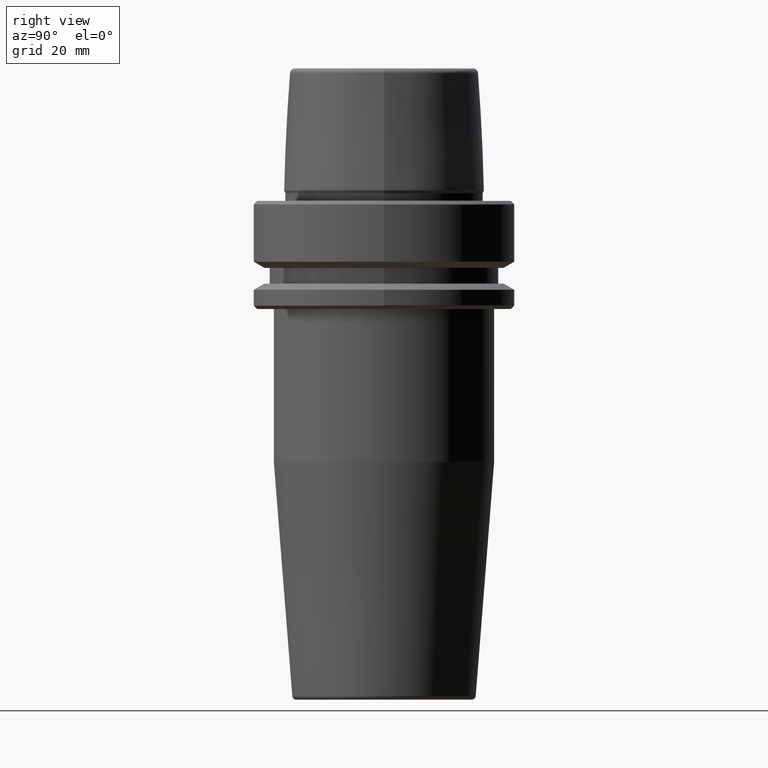
[diagram: clean part render]
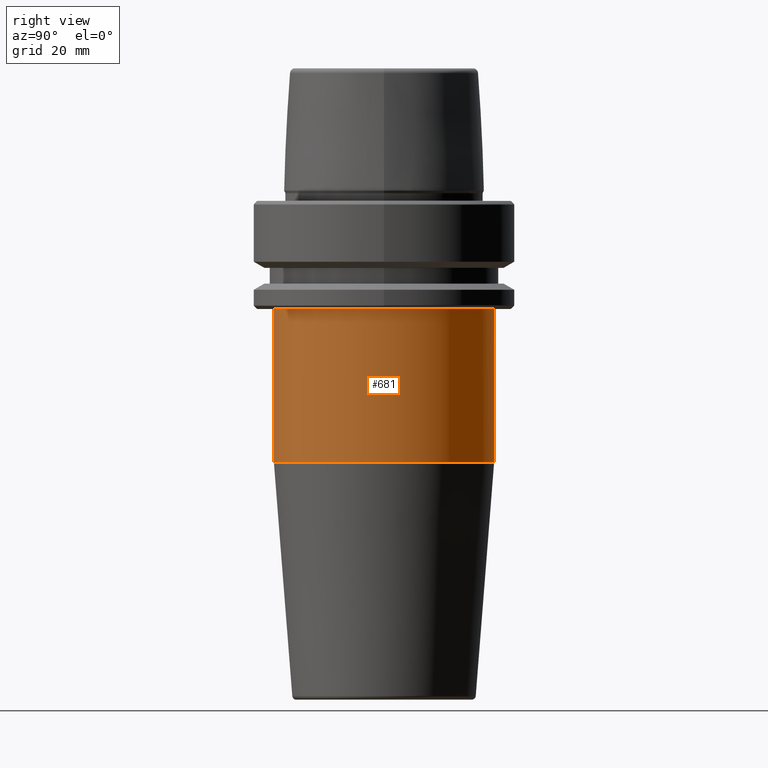
[diagram: same view with one face highlighted and labeled with its STEP entity id]
A machine part, right view. The second image highlights one B-rep face of the part: STEP entity #681.
In plain terms, the highlighted cylindrical surface (partial cylindrical patch) has radius 26.5 mm, axis along (-0, -0, -1).
Its self-contained STEP definition (entity closure, byte-faithful):
#14 = VERTEX_POINT ( 'NONE', #334 ) ;
#67 = LINE ( 'NONE', #467, #939 ) ;
#70 = CIRCLE ( 'NONE', #286, 26.49999999999998900 ) ;
#171 = EDGE_CURVE ( 'NONE', #1177, #1039, #70, .T. ) ;
#229 = CARTESIAN_POINT ( 'NONE',  ( 0.0000000000000000000, 26.49999999999998600, -120.0000000000000000 ) ) ;
#234 = CYLINDRICAL_SURFACE ( 'NONE', #1094, 26.49999999999998900 ) ;
#249 = VERTEX_POINT ( 'NONE', #612 ) ;
#270 = DIRECTION ( 'NONE',  ( -0.0000000000000000000, -5.211262975095122500E-017, -1.000000000000000000 ) ) ;
#277 = EDGE_CURVE ( 'NONE', #14, #249, #1062, .T. ) ;
#286 = AXIS2_PLACEMENT_3D ( 'NONE', #648, #1114, #792 ) ;
#307 = DIRECTION ( 'NONE',  ( 0.0000000000000000000, 1.000000000000000000, 0.0000000000000000000 ) ) ;
#334 = CARTESIAN_POINT ( 'NONE',  ( 3.245314017740484600E-015, 26.49999999999998600, -62.82207868720821200 ) ) ;
#364 = DIRECTION ( 'NONE',  ( 0.0000000000000000000, 1.000000000000000000, 0.0000000000000000000 ) ) ;
#400 = CARTESIAN_POINT ( 'NONE',  ( 0.0000000000000000000, -1.918895353286873100E-015, -62.82207868720821200 ) ) ;
#467 = CARTESIAN_POINT ( 'NONE',  ( 3.245314017740484600E-015, -26.49999999999999300, -120.0000000000000000 ) ) ;
#612 = CARTESIAN_POINT ( 'NONE',  ( 0.0000000000000000000, -26.49999999999999300, -62.82207868720821200 ) ) ;
#623 = ORIENTED_EDGE ( 'NONE', *, *, #854, .F. ) ;
#640 = EDGE_LOOP ( 'NONE', ( #816, #1061, #655, #623 ) ) ;
#648 = CARTESIAN_POINT ( 'NONE',  ( 0.0000000000000000000, 0.0000000000000000000, -26.00000000000001100 ) ) ;
#655 = ORIENTED_EDGE ( 'NONE', *, *, #277, .F. ) ;
#681 = ADVANCED_FACE ( 'NONE', ( #996 ), #234, .T. ) ;
#698 = EDGE_CURVE ( 'NONE', #1039, #249, #67, .T. ) ;
#709 = CARTESIAN_POINT ( 'NONE',  ( 0.0000000000000000000, -4.898587196589414600E-015, -120.0000000000000000 ) ) ;
#727 = DIRECTION ( 'NONE',  ( -0.0000000000000000000, -5.211262975095122500E-017, -1.000000000000000000 ) ) ;
#792 = DIRECTION ( 'NONE',  ( 1.000000000000000000, 0.0000000000000000000, 0.0000000000000000000 ) ) ;
#801 = DIRECTION ( 'NONE',  ( -0.0000000000000000000, -5.211262975095122500E-017, -1.000000000000000000 ) ) ;
#805 = LINE ( 'NONE', #229, #1213 ) ;
#816 = ORIENTED_EDGE ( 'NONE', *, *, #171, .T. ) ;
#854 = EDGE_CURVE ( 'NONE', #1177, #14, #805, .T. ) ;
#923 = CARTESIAN_POINT ( 'NONE',  ( 3.245314017740484600E-015, -26.49999999999998900, -26.00000000000001100 ) ) ;
#939 = VECTOR ( 'NONE', #801, 1000.000000000000000 ) ;
#996 = FACE_OUTER_BOUND ( 'NONE', #640, .T. ) ;
#1001 = DIRECTION ( 'NONE',  ( -0.0000000000000000000, -5.211262975095122500E-017, -1.000000000000000000 ) ) ;
#1007 = AXIS2_PLACEMENT_3D ( 'NONE', #400, #1001, #307 ) ;
#1013 = CARTESIAN_POINT ( 'NONE',  ( 0.0000000000000000000, 26.49999999999998900, -26.00000000000001100 ) ) ;
#1039 = VERTEX_POINT ( 'NONE', #923 ) ;
#1061 = ORIENTED_EDGE ( 'NONE', *, *, #698, .T. ) ;
#1062 = CIRCLE ( 'NONE', #1007, 26.49999999999998600 ) ;
#1094 = AXIS2_PLACEMENT_3D ( 'NONE', #709, #270, #364 ) ;
#1114 = DIRECTION ( 'NONE',  ( 0.0000000000000000000, 0.0000000000000000000, -1.000000000000000000 ) ) ;
#1177 = VERTEX_POINT ( 'NONE', #1013 ) ;
#1213 = VECTOR ( 'NONE', #727, 1000.000000000000000 ) ;